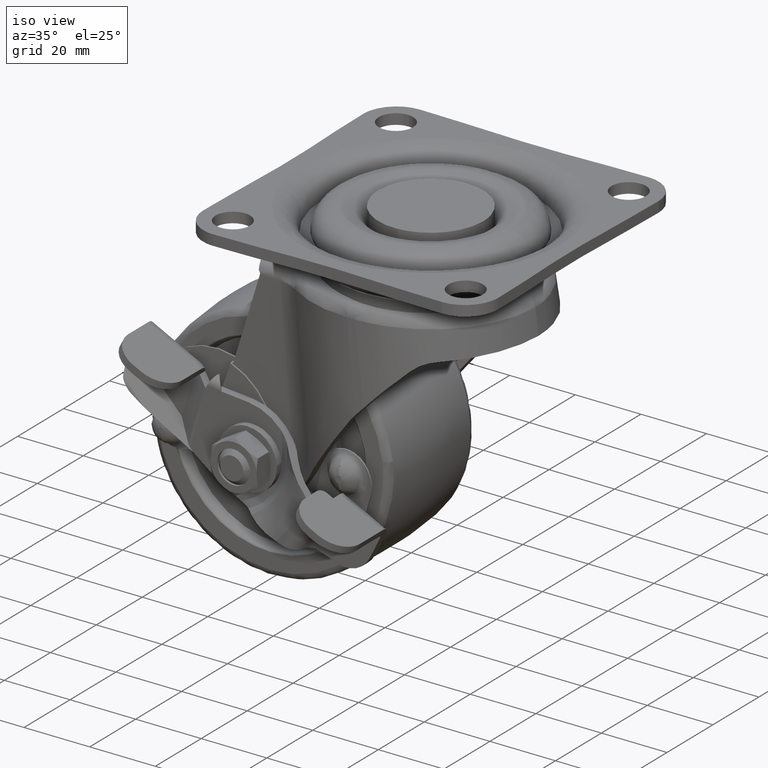
[diagram: clean part render]
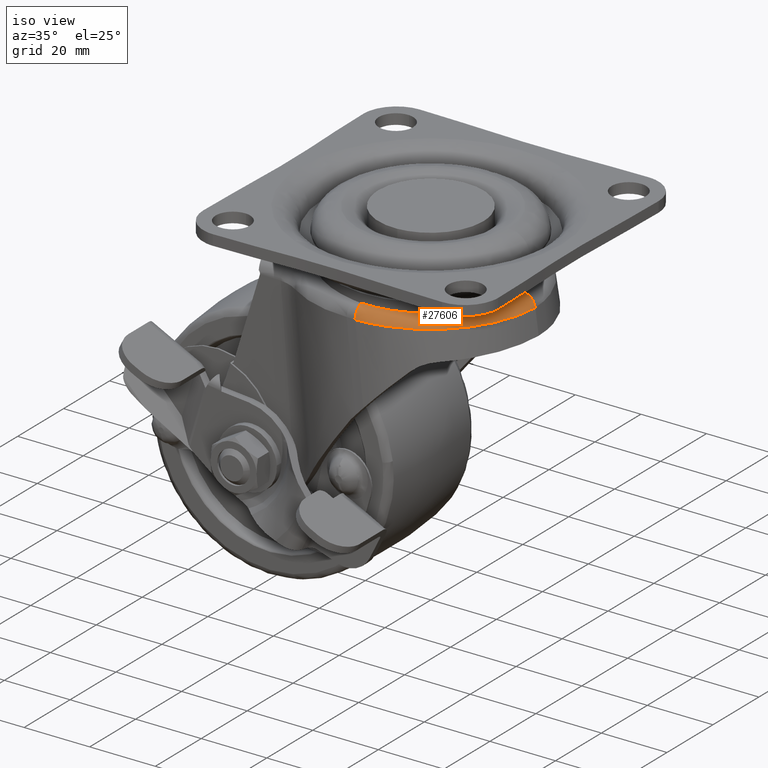
[diagram: same view with one face highlighted and labeled with its STEP entity id]
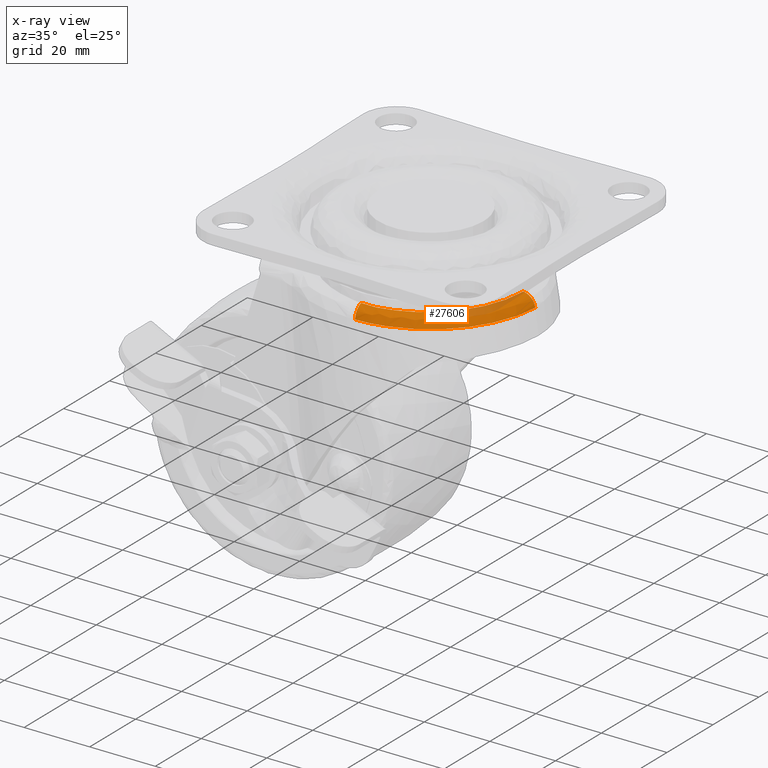
[diagram: x-ray of the same camera — body ghosted, the highlighted face saturated]
A machine part, iso view. The second image highlights one B-rep face of the part: STEP entity #27606.
The next image is the same camera in x-ray: the body ghosted, the highlighted face saturated — about 16% of this face is hidden behind the body in this view.
In plain terms, the highlighted face is a freeform B-spline surface patch.
Its self-contained STEP definition (entity closure, byte-faithful):
#24901=CARTESIAN_POINT('',(-0.982014190738203,-28.983368494293948,-15.992008532247000));
#24902=VERTEX_POINT('',#24901);
#24910=CARTESIAN_POINT('',(3.498372877886210,-28.788216117141950,-16.098365000000001));
#24911=VERTEX_POINT('',#24910);
#24912=CARTESIAN_POINT('',(3.498372877886210,-28.788216117141950,-16.098365000000001));
#24913=CARTESIAN_POINT('',(2.754140327933642,-28.878656005946581,-16.081648075225502));
#24914=CARTESIAN_POINT('',(1.263167546222639,-29.001356929866130,-16.047101492561492));
#24915=CARTESIAN_POINT('',(-0.232782013246968,-29.008753967950700,-16.010637197050539));
#24916=CARTESIAN_POINT('',(-0.982014190738203,-28.983368494293948,-15.992008532247000));
#24917=B_SPLINE_CURVE_WITH_KNOTS('',3,(#24912,#24913,#24914,#24915,#24916),.UNSPECIFIED.,.F.,.U.,(4,1,4),(0.0,0.500000000000000,1.0),.UNSPECIFIED.);
#24918=EDGE_CURVE('',#24911,#24902,#24917,.T.);
#25287=CARTESIAN_POINT('',(28.212640593664052,-0.002578994854396,-16.098365000000001));
#25288=VERTEX_POINT('',#25287);
#25296=CARTESIAN_POINT('',(31.851908014098001,-0.033605314910107,-19.547564456855248));
#25297=VERTEX_POINT('',#25296);
#25298=CARTESIAN_POINT('',(31.851908014098001,-0.033605314910107,-19.547564456855248));
#25299=CARTESIAN_POINT('',(31.821294746626531,-0.033348774807773,-19.321903762281750));
#25300=CARTESIAN_POINT('',(31.771988993445500,-0.032948627782699,-19.102095136629099));
#25301=CARTESIAN_POINT('',(31.637562379408930,-0.031866901567044,-18.673690560739331));
#25302=CARTESIAN_POINT('',(31.552394500972841,-0.031184996967694,-18.465002667826202));
#25303=CARTESIAN_POINT('',(31.344845456906519,-0.029518093090520,-18.059706519887520));
#25304=CARTESIAN_POINT('',(31.225380701402589,-0.028556416234465,-17.868755474199119));
#25305=CARTESIAN_POINT('',(30.956371831621631,-0.026373617689203,-17.509277549233641));
#25306=CARTESIAN_POINT('',(30.806750059290682,-0.025151942574248,-17.340676584270540));
#25307=CARTESIAN_POINT('',(30.558982150066932,-0.023105837827491,-17.105571841413301));
#25308=CARTESIAN_POINT('',(30.472895844268180,-0.022391372086811,-17.030621926411200));
#25309=CARTESIAN_POINT('',(30.295692997673211,-0.020911825061773,-16.889109852978461));
#25310=CARTESIAN_POINT('',(30.204627723888422,-0.020147198403192,-16.822542896158659));
#25311=CARTESIAN_POINT('',(29.924226766912248,-0.017777517820169,-16.635092363373129));
#25312=CARTESIAN_POINT('',(29.727736310522101,-0.016097183788769,-16.526373497864331));
#25313=CARTESIAN_POINT('',(29.470016930275701,-0.013859399807426,-16.411058488138270));
#25314=CARTESIAN_POINT('',(29.417863701829798,-0.013404933266081,-16.389031528431090));
#25315=CARTESIAN_POINT('',(29.312317775957329,-0.012481711991640,-16.347085000876142));
#25316=CARTESIAN_POINT('',(29.258904168179281,-0.012012763153968,-16.327165124296961));
#25317=CARTESIAN_POINT('',(29.098208723782310,-0.010596469143099,-16.271101253386028));
#25318=CARTESIAN_POINT('',(28.990010296723600,-0.009635648751352,-16.238453457365669));
#25319=CARTESIAN_POINT('',(28.662268366642571,-0.006701869333140,-16.154438912984411));
#25320=CARTESIAN_POINT('',(28.439601071371129,-0.004677841844621,-16.116899836748718));
#25321=CARTESIAN_POINT('',(28.212640593664052,-0.002578994853833,-16.098365000000001));
#25322=B_SPLINE_CURVE_WITH_KNOTS('',3,(#25298,#25299,#25300,#25301,#25302,#25303,#25304,#25305,#25306,#25307,#25308,#25309,#25310,#25311,#25312,#25313,#25314,#25315,#25316,#25317,#25318,#25319,#25320,#25321),.UNSPECIFIED.,.F.,.U.,(4,2,2,2,2,2,2,2,2,2,2,4),(0.0,0.124999999999998,0.249999999999996,0.374999999999995,0.499999999999993,0.562499999999991,0.624999999999988,0.749999999999985,0.781249999999987,0.812499999999988,0.874999999999992,1.0),.UNSPECIFIED.);
#25323=EDGE_CURVE('',#25297,#25288,#25322,.T.);
#25647=CARTESIAN_POINT('',(28.212640593664052,-0.002578994854396,-16.098365000000001));
#25648=CARTESIAN_POINT('',(28.185325638827219,-0.864400376915888,-16.098365000000001));
#25649=CARTESIAN_POINT('',(28.125187238811911,-1.721447557260715,-16.098365000000001));
#25650=CARTESIAN_POINT('',(27.937697007764601,-3.425765659669194,-16.098364999999990));
#25651=CARTESIAN_POINT('',(27.810274301160320,-4.273026272812592,-16.098365000000001));
#25652=CARTESIAN_POINT('',(27.566292579622360,-5.536230449240657,-16.098365000000001));
#25653=CARTESIAN_POINT('',(27.476152475719079,-5.956016668581317,-16.098365000000001));
#25654=CARTESIAN_POINT('',(27.277807106862721,-6.792961512187634,-16.098365000000008));
#25655=CARTESIAN_POINT('',(27.169560280169190,-7.210269017853981,-16.098365000000008));
#25656=CARTESIAN_POINT('',(26.817259961042328,-8.457232243335559,-16.098364999999990));
#25657=CARTESIAN_POINT('',(26.548386033689109,-9.272431112848688,-16.098365000000001));
#25658=CARTESIAN_POINT('',(25.943782283762118,-10.871157624121810,-16.098365000000001));
#25659=CARTESIAN_POINT('',(25.608061583904419,-11.654689587529420,-16.098365000000001));
#25660=CARTESIAN_POINT('',(24.869967428628129,-13.190178518680030,-16.098365000000008));
#25661=CARTESIAN_POINT('',(24.467601116251039,-13.942138870251689,-16.098365000000001));
#25662=CARTESIAN_POINT('',(23.813304786381970,-15.046039402380730,-16.098365000000001));
#25663=CARTESIAN_POINT('',(23.586738133657299,-15.409994812103470,-16.098365000000008));
#25664=CARTESIAN_POINT('',(23.233991658342330,-15.949818549677440,-16.098365000000008));
#25665=CARTESIAN_POINT('',(23.114259354679049,-16.128741220600521,-16.098365000000008));
#25666=CARTESIAN_POINT('',(22.870452827089210,-16.484529691544129,-16.098365000000001));
#25667=CARTESIAN_POINT('',(22.746252538382571,-16.661563615882969,-16.098365000000001));
#25668=CARTESIAN_POINT('',(22.117260517908210,-17.537452306927729,-16.098365000000001));
#25669=CARTESIAN_POINT('',(21.586826525409979,-18.211154221193969,-16.098365000000001));
#25670=CARTESIAN_POINT('',(20.473205033409581,-19.506252549275992,-16.098365000000001));
#25671=CARTESIAN_POINT('',(19.306823168904010,-20.749038569711249,-16.098365000000001));
#25672=CARTESIAN_POINT('',(18.035993271524170,-21.888263577034170,-16.098365000000008));
#25673=CARTESIAN_POINT('',(17.043245426266441,-22.703393427245210,-16.098365000000001));
#25674=CARTESIAN_POINT('',(16.705716216218171,-22.968546278484379,-16.098365000000001));
#25675=CARTESIAN_POINT('',(16.189360796672069,-23.356299398548622,-16.098365000000001));
#25676=CARTESIAN_POINT('',(16.015564782111358,-23.483887143628689,-16.098365000000001));
#25677=CARTESIAN_POINT('',(15.664586495886180,-23.735705134306318,-16.098365000000001));
#25678=CARTESIAN_POINT('',(15.487914648138039,-23.859566990543609,-16.098365000000001));
#25679=CARTESIAN_POINT('',(14.599696960060990,-24.468046273512979,-16.098365000000001));
#25680=CARTESIAN_POINT('',(13.872574553501510,-24.920977321100128,-16.098365000000001));
#25681=CARTESIAN_POINT('',(12.386243128587861,-25.761200588225950,-16.098365000000001));
#25682=CARTESIAN_POINT('',(10.867820111827310,-26.535774839727441,-16.098365000000001));
#25683=CARTESIAN_POINT('',(9.285772219970918,-27.180193178764739,-16.098365000000001));
#25684=CARTESIAN_POINT('',(8.075060953379955,-27.614051992123450,-16.098365000000001));
#25685=CARTESIAN_POINT('',(7.667455843068439,-27.750417929873461,-16.098365000000001));
#25686=CARTESIAN_POINT('',(7.049905147361591,-27.942400183834351,-16.098365000000001));
#25687=CARTESIAN_POINT('',(6.842824626995656,-28.004355537596290,-16.098365000000001));
#25688=CARTESIAN_POINT('',(6.428141776530851,-28.123601875341802,-16.098365000000001));
#25689=CARTESIAN_POINT('',(6.220436241147150,-28.180930074125410,-16.098365000000001));
#25690=CARTESIAN_POINT('',(5.180102887772855,-28.456189969653000,-16.098365000000001));
#25691=CARTESIAN_POINT('',(4.342068133490940,-28.640041987435922,-16.098365000000008));
#25692=CARTESIAN_POINT('',(3.498372877886200,-28.788216117141928,-16.098365000000001));
#25693=B_SPLINE_CURVE_WITH_KNOTS('',3,(#25647,#25648,#25649,#25650,#25651,#25652,#25653,#25654,#25655,#25656,#25657,#25658,#25659,#25660,#25661,#25662,#25663,#25664,#25665,#25666,#25667,#25668,#25669,#25670,#25671,#25672,#25673,#25674,#25675,#25676,#25677,#25678,#25679,#25680,#25681,#25682,#25683,#25684,#25685,#25686,#25687,#25688,#25689,#25690,#25691,#25692),.UNSPECIFIED.,.F.,.U.,(4,2,2,2,2,2,2,2,2,2,2,2,1,2,2,2,2,2,1,2,2,2,2,4),(0.0,0.062500000000000,0.125000000000001,0.156250000000001,0.187500000000002,0.250000000000002,0.312500000000002,0.375000000000003,0.406250000000003,0.421875000000003,0.437500000000003,0.500000000000003,0.562500000000003,0.625000000000002,0.656250000000002,0.671875000000002,0.687500000000002,0.750000000000001,0.812500000000001,0.875000000000001,0.906250000000001,0.921875000000001,0.937500000000001,1.0),.UNSPECIFIED.);
#25694=EDGE_CURVE('',#25288,#24911,#25693,.T.);
#27163=CARTESIAN_POINT('',(-1.027005208509110,-31.563735261306348,-19.585117558739899));
#27164=VERTEX_POINT('',#27163);
#27165=CARTESIAN_POINT('',(31.851908014098001,-0.033605314910143,-19.547564456855259));
#27166=CARTESIAN_POINT('',(30.764134399594333,-31.557440501881484,-19.414241799426648));
#27167=CARTESIAN_POINT('',(-1.027005208509132,-31.563735261306402,-19.585117558739888));
#27175=(BOUNDED_CURVE()B_SPLINE_CURVE(2,(#27165,#27166,#27167),.UNSPECIFIED.,.F.,.U.)CURVE()GEOMETRIC_REPRESENTATION_ITEM()QUASI_UNIFORM_CURVE()RATIONAL_B_SPLINE_CURVE((1.0,0.720600409255414,1.0))REPRESENTATION_ITEM(''));
#27176=EDGE_CURVE('',#25297,#27164,#27175,.T.);
#27525=CARTESIAN_POINT('',(27.973528481397647,0.364682143400062,-16.085931200734649));
#27526=CARTESIAN_POINT('',(27.927814737986182,-1.485309360017829,-16.085373334368157));
#27527=CARTESIAN_POINT('',(27.701532506994152,-3.329881958498706,-16.082612851169380));
#27528=CARTESIAN_POINT('',(26.896181857565189,-6.940229753393900,-16.072788524792248));
#27529=CARTESIAN_POINT('',(26.317132927171574,-8.705899122342428,-16.065724919346767));
#27530=CARTESIAN_POINT('',(24.827660183585703,-12.093056049135175,-16.047555537141552));
#27531=CARTESIAN_POINT('',(23.917271870266045,-13.714463659223268,-16.036450193432344));
#27532=CARTESIAN_POINT('',(21.798791641538759,-16.753087617660363,-16.010608072807219));
#27533=CARTESIAN_POINT('',(20.590750350424397,-18.170232546766581,-15.995871913436799));
#27534=CARTESIAN_POINT('',(17.921651081110930,-20.747875643170907,-15.963313269975515));
#27535=CARTESIAN_POINT('',(16.460656871144277,-21.908313697692495,-15.945491563764966));
#27536=CARTESIAN_POINT('',(13.339701609615357,-23.929582101564836,-15.907421145154190));
#27537=CARTESIAN_POINT('',(11.679814961815906,-24.790365981664650,-15.887173340369010));
#27538=CARTESIAN_POINT('',(8.222488634928363,-26.180449233921632,-15.844999869108424));
#27539=CARTESIAN_POINT('',(6.425131049284297,-26.709717574884117,-15.823075204046489));
#27540=CARTESIAN_POINT('',(2.759369281320698,-27.417156923474248,-15.778359276183361));
#27541=CARTESIAN_POINT('',(0.891072521826916,-27.595313513721937,-15.755569323765330));
#27542=CARTESIAN_POINT('',(-0.978227688832776,-27.594611418717783,-15.732767154221241));
#27543=CARTESIAN_POINT('',(31.401216850838406,0.280024051180968,-16.150476808047415));
#27544=CARTESIAN_POINT('',(31.342712319109090,-1.792241892806959,-16.149686672609469));
#27545=CARTESIAN_POINT('',(31.085181533548830,-3.857412758073600,-16.146501956964990));
#27546=CARTESIAN_POINT('',(30.181460227696242,-7.900647788556817,-16.135459199122888));
#27547=CARTESIAN_POINT('',(29.535287958899531,-9.878611844844590,-16.127601359310660));
#27548=CARTESIAN_POINT('',(27.877031261612832,-13.677189990314721,-16.107489137403320));
#27549=CARTESIAN_POINT('',(26.864977709915792,-15.497730329195077,-16.095235315176637));
#27550=CARTESIAN_POINT('',(24.510311806359866,-18.916565741584531,-16.066760254267635));
#27551=CARTESIAN_POINT('',(23.167742547723087,-20.514793471957248,-16.050539919567477));
#27552=CARTESIAN_POINT('',(20.198881420229977,-23.431540705996355,-16.014699574578724));
#27553=CARTESIAN_POINT('',(18.572643410619197,-24.750001082577203,-15.995080757328186));
#27554=CARTESIAN_POINT('',(15.093291446723097,-27.059083209681976,-15.953131752377850));
#27555=CARTESIAN_POINT('',(13.240240419527215,-28.049655382903588,-15.930802970169424));
#27556=CARTESIAN_POINT('',(9.372351299972346,-29.665786893936122,-15.884221210775465));
#27557=CARTESIAN_POINT('',(7.357583485817123,-30.291307022099073,-15.859969758649887));
#27558=CARTESIAN_POINT('',(3.237584194803195,-31.152432710822019,-15.810404075633837));
#27559=CARTESIAN_POINT('',(1.132469995202034,-31.388009132852353,-15.785091879368549));
#27560=CARTESIAN_POINT('',(-0.980276554892911,-31.422813673443031,-15.759699984502044));
#27561=CARTESIAN_POINT('',(31.860905894548520,0.267649463936113,-19.548846055007552));
#27562=CARTESIAN_POINT('',(31.807796150928681,-1.837284659826188,-19.539838773308681));
#27563=CARTESIAN_POINT('',(31.549676351883669,-3.936194024449212,-19.531960187348250));
#27564=CARTESIAN_POINT('',(30.632943087529149,-8.044607768196297,-19.518750700638421));
#27565=CARTESIAN_POINT('',(29.974351224954940,-10.053994913385649,-19.513420201319580));
#27566=CARTESIAN_POINT('',(28.281032570819701,-13.908942199938039,-19.505504495392191));
#27567=CARTESIAN_POINT('',(27.246344609176081,-15.754413942528879,-19.502919470293591));
#27568=CARTESIAN_POINT('',(24.839112599398661,-19.213217912241038,-19.500590516212281));
#27569=CARTESIAN_POINT('',(23.466623752112248,-20.826470824653281,-19.500846640641122));
#27570=CARTESIAN_POINT('',(20.434573328356390,-23.761116422620020,-19.504190636187950));
#27571=CARTESIAN_POINT('',(18.775081280609051,-25.082441813070041,-19.507278430630070));
#27572=CARTESIAN_POINT('',(15.230432766670170,-27.384313801013629,-19.516171609952231));
#27573=CARTESIAN_POINT('',(13.345357583738940,-28.364807613683240,-19.521976790921329));
#27574=CARTESIAN_POINT('',(9.419303258266069,-29.948710568117122,-19.536090005331118));
#27575=CARTESIAN_POINT('',(7.378414145099222,-30.552083388991601,-19.544397715150740));
#27576=CARTESIAN_POINT('',(3.216262636272659,-31.359394900136571,-19.563208615322409));
#27577=CARTESIAN_POINT('',(1.095118988792690,-31.563315073119892,-19.573711249049609));
#27578=CARTESIAN_POINT('',(-1.027005208509111,-31.563735261306409,-19.585117558739888));
#27586=(BOUNDED_SURFACE()B_SPLINE_SURFACE(3,2,((#27525,#27543,#27561),(#27526,#27544,#27562),(#27527,#27545,#27563),(#27528,#27546,#27564),(#27529,#27547,#27565),(#27530,#27548,#27566),(#27531,#27549,#27567),(#27532,#27550,#27568),(#27533,#27551,#27569),(#27534,#27552,#27570),(#27535,#27553,#27571),(#27536,#27554,#27572),(#27537,#27555,#27573),(#27538,#27556,#27574),(#27539,#27557,#27575),(#27540,#27558,#27576),(#27541,#27559,#27577),(#27542,#27560,#27578)),.UNSPECIFIED.,.F.,.F.,.U.)B_SPLINE_SURFACE_WITH_KNOTS((4,2,2,2,2,2,2,2,4),(3,3),(0.0,6.366464678539751,12.732929357079501,19.099394035619241,25.465858714158990,31.832323392698740,38.198788071238482,44.565252749778253,50.931717428317981),(0.032703660854697,6.455523740687834),.UNSPECIFIED.)GEOMETRIC_REPRESENTATION_ITEM()RATIONAL_B_SPLINE_SURFACE(((0.997550632032300,0.758254081470844,1.0),(0.997557591528780,0.758940964736773,1.0),(0.997561517193306,0.759328417087378,1.0),(0.997563201045255,0.759494608668813,1.0),(0.997560956351723,0.759273063557293,1.0),(0.997550360544697,0.758227286387050,1.0),(0.997542009484840,0.757403059622276,1.0),(0.997519451066391,0.755176605426527,1.0),(0.997505243831372,0.753774390191975,1.0),(0.997471403884633,0.750434480012992,1.0),(0.997451771383888,0.748496805891260,1.0),(0.997407687488237,0.744145845975501,1.0),(0.997383236419164,0.741732592340209,1.0),(0.997330289794910,0.736506905354032,1.0),(0.997301794717931,0.733694519200178,1.0),(0.997241690406374,0.727762388055935,1.0),(0.997210083842784,0.724642906684721,1.0),(0.997177450767120,0.721422111379652,1.0)))REPRESENTATION_ITEM('')SURFACE());
#27587=ORIENTED_EDGE('',*,*,#27176,.F.);
#27588=ORIENTED_EDGE('',*,*,#25323,.T.);
#27589=ORIENTED_EDGE('',*,*,#25694,.T.);
#27590=ORIENTED_EDGE('',*,*,#24918,.T.);
#27591=CARTESIAN_POINT('',(-0.982014190738217,-28.983368494293959,-15.992008532246979));
#27592=CARTESIAN_POINT('',(-0.994600597883420,-31.466011299024576,-16.932330513087170));
#27593=CARTESIAN_POINT('',(-1.027005208509110,-31.563735261306309,-19.585117558739899));
#27601=(BOUNDED_CURVE()B_SPLINE_CURVE(2,(#27591,#27592,#27593),.UNSPECIFIED.,.F.,.U.)CURVE()GEOMETRIC_REPRESENTATION_ITEM()QUASI_UNIFORM_CURVE()RATIONAL_B_SPLINE_CURVE((1.0,0.833190879613516,1.0))REPRESENTATION_ITEM(''));
#27602=EDGE_CURVE('',#24902,#27164,#27601,.T.);
#27603=ORIENTED_EDGE('',*,*,#27602,.T.);
#27604=EDGE_LOOP('',(#27587,#27588,#27589,#27590,#27603));
#27605=FACE_OUTER_BOUND('',#27604,.T.);
#27606=ADVANCED_FACE('',(#27605),#27586,.T.);